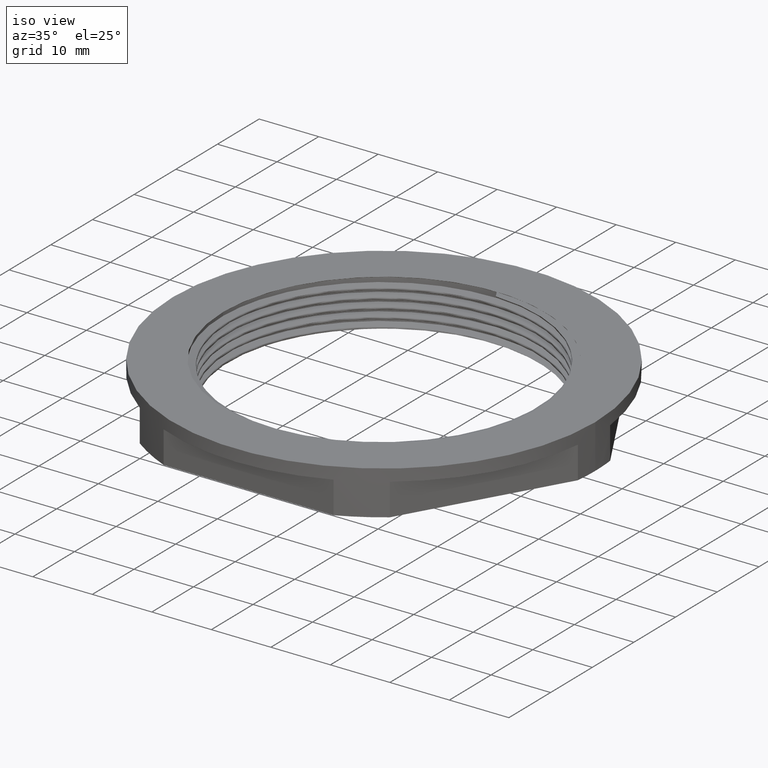
[diagram: clean part render]
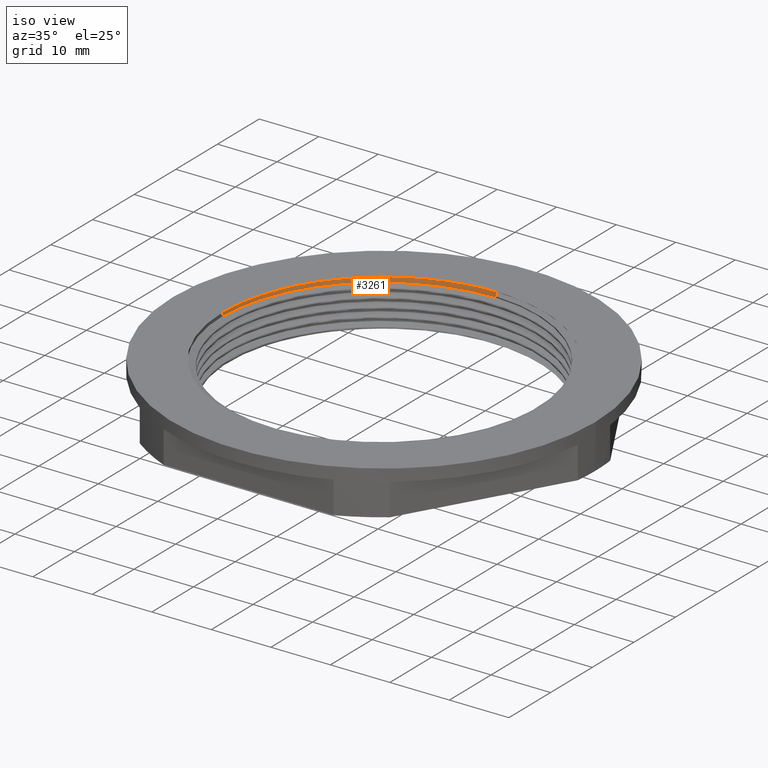
[diagram: same view with one face highlighted and labeled with its STEP entity id]
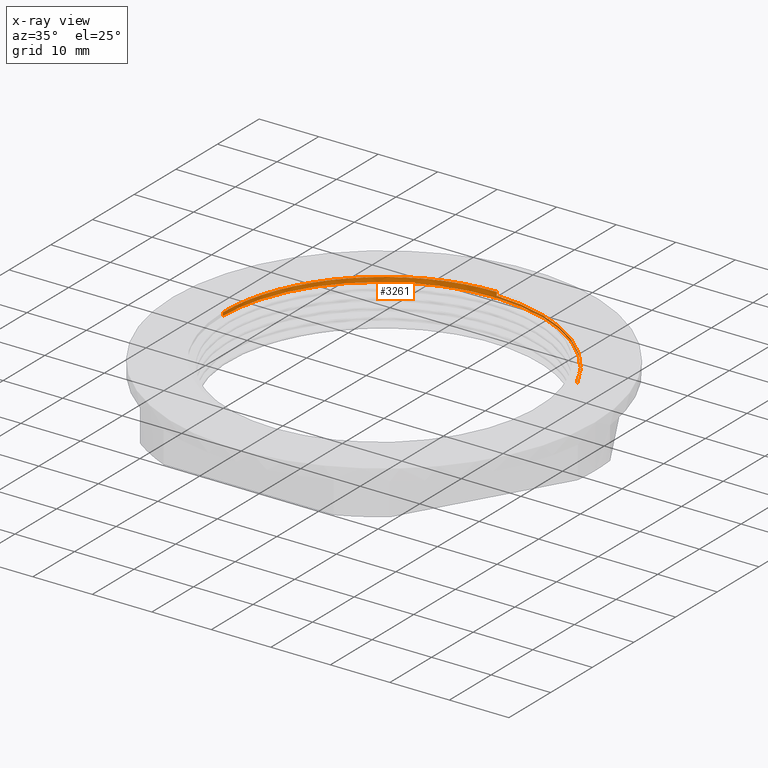
[diagram: x-ray of the same camera — body ghosted, the highlighted face saturated]
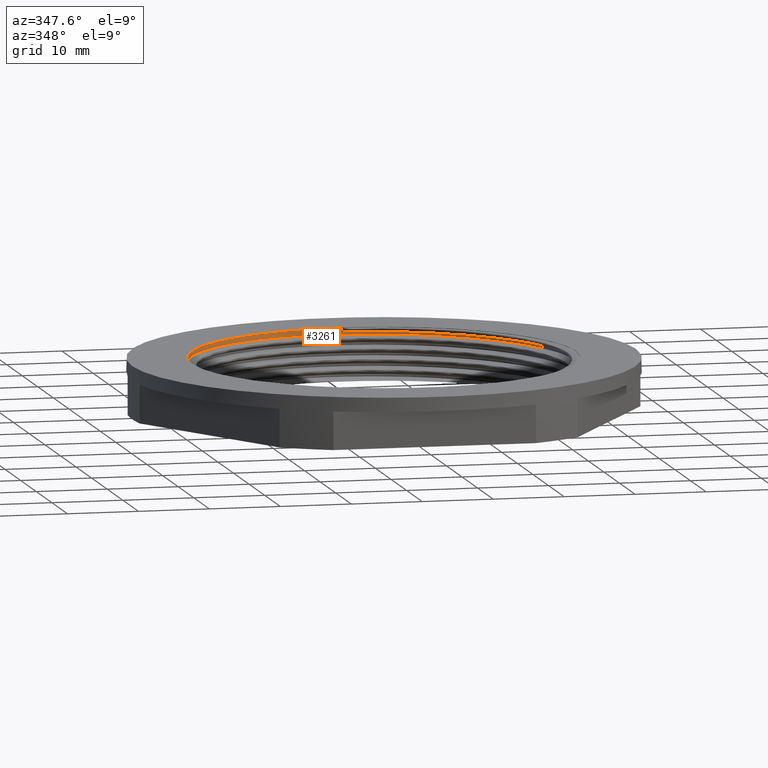
[diagram: same view with one face highlighted and labeled with its STEP entity id]
A machine part, iso view. The second image highlights one B-rep face of the part: STEP entity #3261.
The next image is the same camera in x-ray: the body ghosted, the highlighted face saturated — about 0% of this face is hidden behind the body in this view.
A second angle (auxiliary view) of the same face is appended — the face is thin or edge-on in the first view.
In plain terms, the highlighted cylindrical surface (partial cylindrical patch) has radius 27.05 mm, axis along (-0, -0, -1).
Its self-contained STEP definition (entity closure, byte-faithful):
#5 = ORIENTED_EDGE ( 'NONE', *, *, #3290, .T. ) ;
#6 = ORIENTED_EDGE ( 'NONE', *, *, #3291, .F. ) ;
#11 = ORIENTED_EDGE ( 'NONE', *, *, #3300, .F. ) ;
#18 = ORIENTED_EDGE ( 'NONE', *, *, #3303, .F. ) ;
#57 = ORIENTED_EDGE ( 'NONE', *, *, #3309, .F. ) ;
#77 = VERTEX_POINT ( 'NONE', #145 ) ;
#93 = VERTEX_POINT ( 'NONE', #165 ) ;
#110 = VERTEX_POINT ( 'NONE', #206 ) ;
#111 = VERTEX_POINT ( 'NONE', #190 ) ;
#131 = VERTEX_POINT ( 'NONE', #201 ) ;
#145 = CARTESIAN_POINT ( 'NONE',  ( -27.04940074039738100, -0.001345912833219031600, 7.339314339320105200 ) ) ;
#165 = CARTESIAN_POINT ( 'NONE',  ( 0.0005992596047327636400, 27.04865408716665700, 7.339314339320103500 ) ) ;
#173 = VERTEX_POINT ( 'NONE', #214 ) ;
#190 = CARTESIAN_POINT ( 'NONE',  ( 0.0005992596047341767900, 27.04865408716666400, 6.769316553026091500 ) ) ;
#201 = CARTESIAN_POINT ( 'NONE',  ( -27.04940074039737800, -0.001345912832451536400, 6.804054722281383900 ) ) ;
#206 = CARTESIAN_POINT ( 'NONE',  ( 24.71156370375077300, 11.00186890103075800, 6.164860901789985800 ) ) ;
#214 = CARTESIAN_POINT ( 'NONE',  ( 24.71156370373493900, 11.00186890106634300, 6.498986368898678200 ) ) ;
#259 = FACE_OUTER_BOUND ( 'NONE', #378, .T. ) ;
#286 = CYLINDRICAL_SURFACE ( 'NONE', #3428, 27.04999999999990100 ) ;
#287 = CARTESIAN_POINT ( 'NONE',  ( 0.0005992596025210209100, -0.001345912833219031600, 39.40585979386544600 ) ) ;
#288 = DIRECTION ( 'NONE',  ( -0.0000000000000000000, -0.0000000000000000000, -1.000000000000000000 ) ) ;
#289 = DIRECTION ( 'NONE',  ( -1.000000000000000000, 0.0000000000000000000, 0.0000000000000000000 ) ) ;
#378 = EDGE_LOOP ( 'NONE', ( #57, #5, #6, #579, #18, #11 ) ) ;
#579 = ORIENTED_EDGE ( 'NONE', *, *, #3294, .T. ) ;
#594 =( BOUNDED_CURVE ( )  B_SPLINE_CURVE ( 2, ( #2199, #2201, #2186, #2211, #2188 ),
 .UNSPECIFIED., .F., .F. ) 
 B_SPLINE_CURVE_WITH_KNOTS ( ( 3, 2, 3 ),
 ( 0.0000000000000000000, 0.02138835047176438100, 0.03137765058295742500 ),
 .UNSPECIFIED. ) 
 CURVE ( )  GEOMETRIC_REPRESENTATION_ITEM ( )  RATIONAL_B_SPLINE_CURVE ( ( 1.000000000000000000, 0.9238795325112867400, 1.000000000000000000, 0.9644483946832229600, 0.9621051151242270300 ) ) 
 REPRESENTATION_ITEM ( '' )  );
#602 =( BOUNDED_CURVE ( )  B_SPLINE_CURVE ( 2, ( #3124, #3104, #3129, #3096, #3089, #3092, #3093, #3094, #3113 ),
 .UNSPECIFIED., .F., .T. ) 
 B_SPLINE_CURVE_WITH_KNOTS ( ( 3, 2, 2, 2, 3 ),
 ( -0.07423649868370776900, -0.06423613256502679100, -0.04282408837668451300, -0.02141204418834227000, 0.0000000000000000000 ),
 .UNSPECIFIED. ) 
 CURVE ( )  GEOMETRIC_REPRESENTATION_ITEM ( )  RATIONAL_B_SPLINE_CURVE ( ( 0.9621051151242088200, 0.9644483946830850800, 1.000000000000000000, 0.9238795325112866300, 1.000000000000000000, 0.9238795325112866300, 1.000000000000000000, 0.9238795325112815200, 1.000000000000005100 ) ) 
 REPRESENTATION_ITEM ( '' )  );
#2186 = CARTESIAN_POINT ( 'NONE',  ( 19.12783769070013300, 19.12589251826133500, 6.584884734844243900 ) ) ;
#2188 = CARTESIAN_POINT ( 'NONE',  ( 24.71156370373493900, 11.00186890106634300, 6.498986368898678200 ) ) ;
#2199 = CARTESIAN_POINT ( 'NONE',  ( 0.0005992596047341767900, 27.04865408716666400, 6.769316553026091500 ) ) ;
#2201 = CARTESIAN_POINT ( 'NONE',  ( 11.20507612179690000, 27.04865408716584300, 6.677100643935152600 ) ) ;
#2211 = CARTESIAN_POINT ( 'NONE',  ( 22.67246604118691900, 15.58126416777398800, 6.543627513749454400 ) ) ;
#2235 = DIRECTION ( 'NONE',  ( -1.000000000000000000, 0.0000000000000000000, 0.0000000000000000000 ) ) ;
#2244 = CARTESIAN_POINT ( 'NONE',  ( 0.0005992596025210209100, -0.001345912833219031600, 7.339314339320105200 ) ) ;
#2255 = DIRECTION ( 'NONE',  ( -0.0000000000000000000, -0.0000000000000000000, -1.000000000000000000 ) ) ;
#3089 = CARTESIAN_POINT ( 'NONE',  ( 0.0005992596046673653200, 27.04865408716678100, 6.435191085917769400 ) ) ;
#3090 = DIRECTION ( 'NONE',  ( -0.0000000000000000000, -0.0000000000000000000, -1.000000000000000000 ) ) ;
#3092 = CARTESIAN_POINT ( 'NONE',  ( -11.20387760258757100, 27.04865408716766200, 6.527406995008679900 ) ) ;
#3093 = CARTESIAN_POINT ( 'NONE',  ( -19.12663917149208000, 19.12589251826440400, 6.619622904099586900 ) ) ;
#3094 = CARTESIAN_POINT ( 'NONE',  ( -27.04940074039716400, 11.20313094936058600, 6.711838813190503600 ) ) ;
#3096 = CARTESIAN_POINT ( 'NONE',  ( 11.20507612179689400, 27.04865408716589300, 6.342975176826861600 ) ) ;
#3099 = LINE ( 'NONE', #3115, #3493 ) ;
#3104 = CARTESIAN_POINT ( 'NONE',  ( 22.67246604120117900, 15.58126416775977900, 6.209502046640997400 ) ) ;
#3105 = LINE ( 'NONE', #3106, #3447 ) ;
#3106 = CARTESIAN_POINT ( 'NONE',  ( -27.04940074039738100, -0.001345912833219031600, 39.40585979386544600 ) ) ;
#3113 = CARTESIAN_POINT ( 'NONE',  ( -27.04940074039737800, -0.001345912832451536400, 6.804054722281383900 ) ) ;
#3115 = CARTESIAN_POINT ( 'NONE',  ( 24.71156370373492800, 11.00186890106634200, 3.699859793865487100 ) ) ;
#3124 = CARTESIAN_POINT ( 'NONE',  ( 24.71156370375077300, 11.00186890103075800, 6.164860901789985800 ) ) ;
#3125 = DIRECTION ( 'NONE',  ( 0.0000000000000000000, 0.0000000000000000000, 1.000000000000000000 ) ) ;
#3129 = CARTESIAN_POINT ( 'NONE',  ( 19.12783769070014400, 19.12589251826137700, 6.250759267735952000 ) ) ;
#3167 = DIRECTION ( 'NONE',  ( -2.269037794830246900E-015, -1.310029581646690900E-015, -1.000000000000000000 ) ) ;
#3175 = CARTESIAN_POINT ( 'NONE',  ( 0.0005992596047444847300, 27.04865408716663900, 7.372173174577263000 ) ) ;
#3176 = LINE ( 'NONE', #3175, #3475 ) ;
#3261 = ADVANCED_FACE ( 'NONE', ( #259 ), #286, .F. ) ;
#3290 = EDGE_CURVE ( 'NONE', #77, #131, #3105, .T. ) ;
#3291 = EDGE_CURVE ( 'NONE', #110, #131, #602, .T. ) ;
#3294 = EDGE_CURVE ( 'NONE', #110, #173, #3099, .T. ) ;
#3300 = EDGE_CURVE ( 'NONE', #93, #111, #3176, .T. ) ;
#3303 = EDGE_CURVE ( 'NONE', #111, #173, #594, .T. ) ;
#3309 = EDGE_CURVE ( 'NONE', #77, #93, #3467, .T. ) ;
#3428 = AXIS2_PLACEMENT_3D ( 'NONE', #287, #288, #289 ) ;
#3447 = VECTOR ( 'NONE', #3090, 1000.000000000000000 ) ;
#3467 = CIRCLE ( 'NONE', #3495, 27.04999999999990100 ) ;
#3475 = VECTOR ( 'NONE', #3167, 1000.000000000000000 ) ;
#3493 = VECTOR ( 'NONE', #3125, 1000.000000000000000 ) ;
#3495 = AXIS2_PLACEMENT_3D ( 'NONE', #2244, #2255, #2235 ) ;